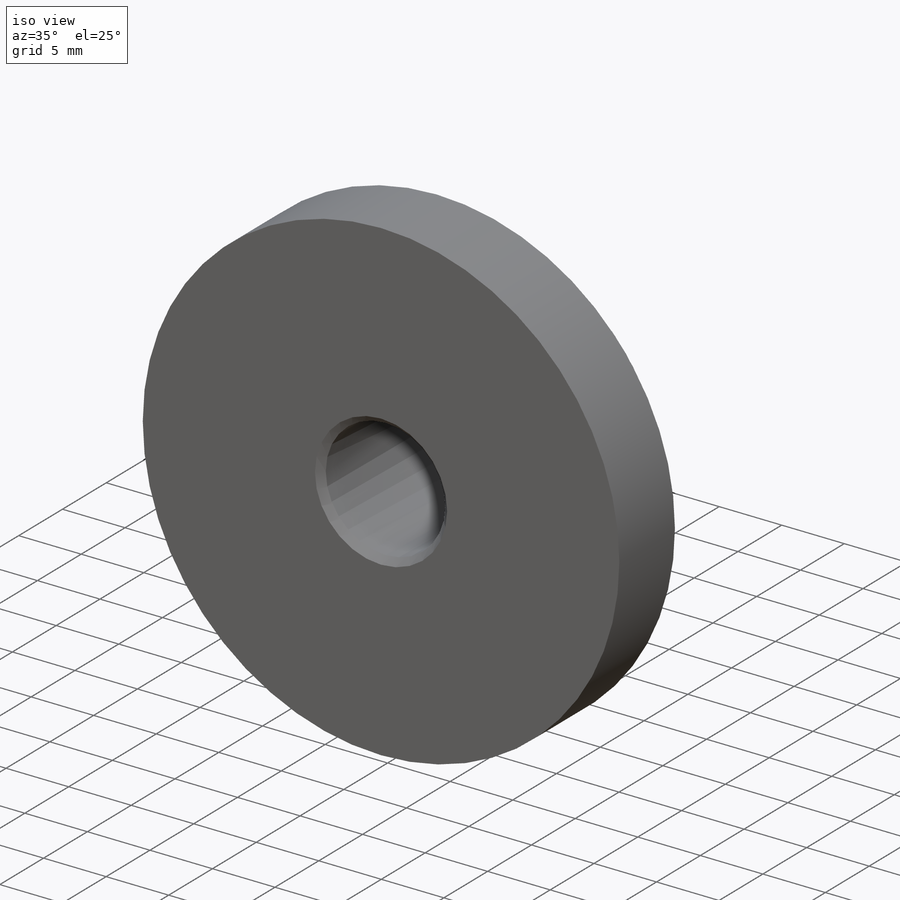
[diagram: iso view]
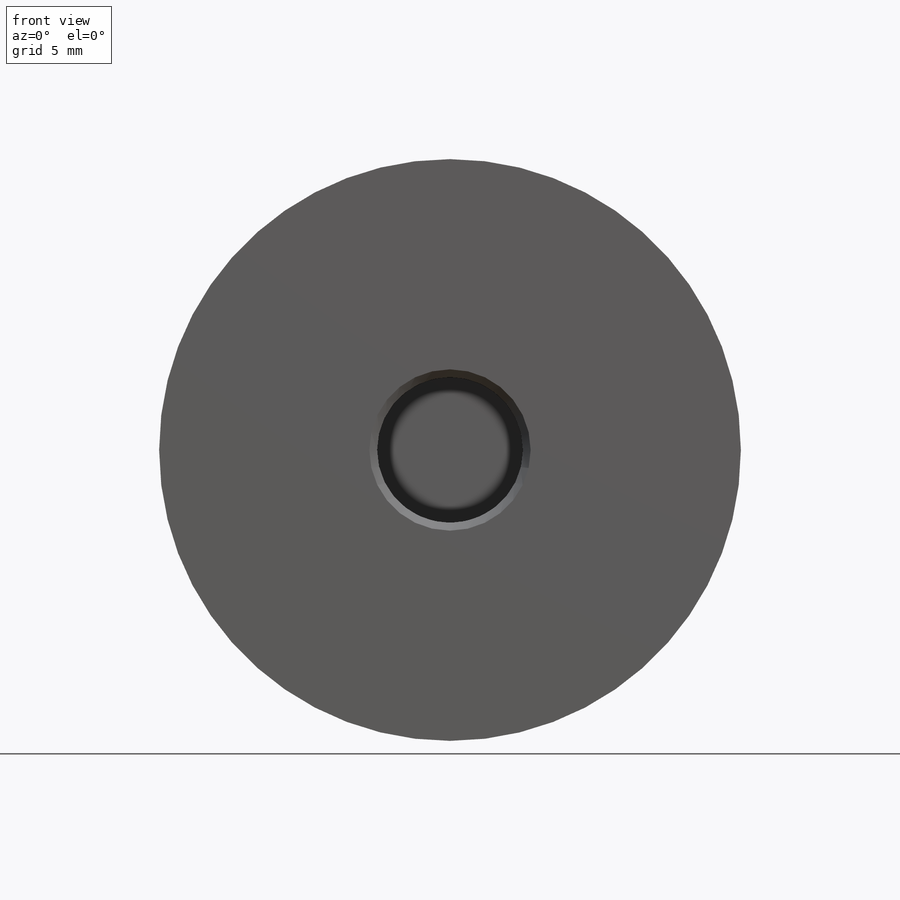
[diagram: front view]
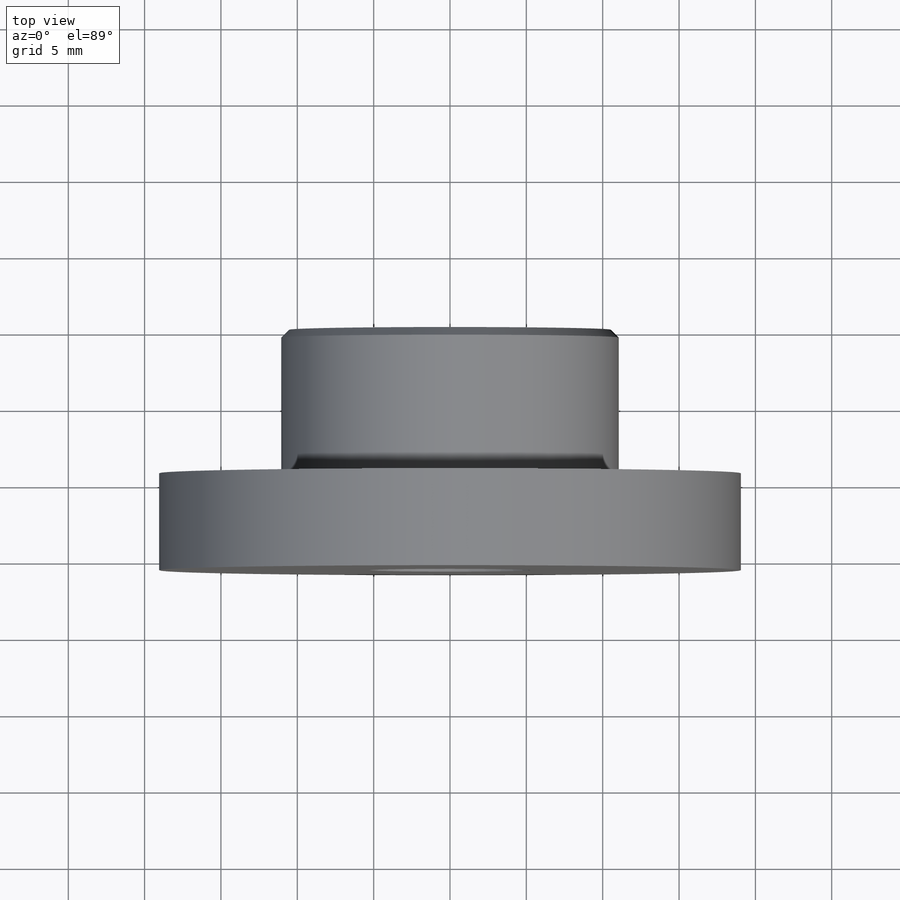
[diagram: top view]
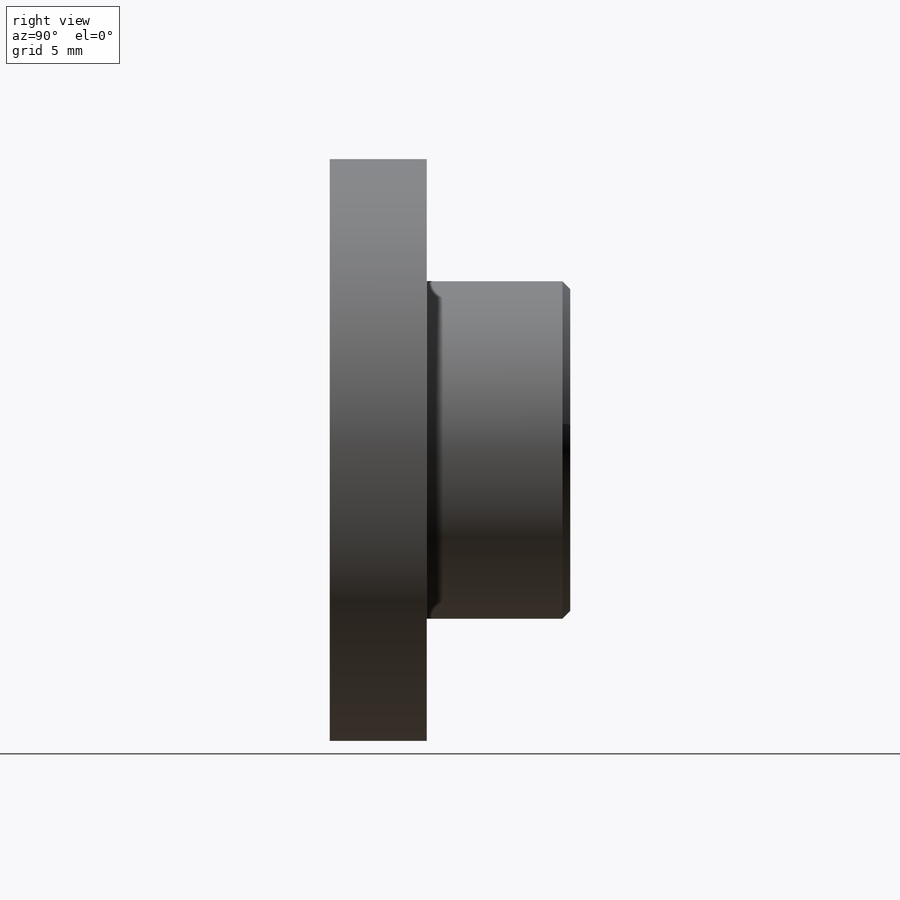
[diagram: right view]
SOLIDWORKS PART (.sldprt)
format: sldprt  version: not decoded by parser v0  size: 230,400 bytes
history: native  units: mm
features: sketch x3, cut_extrude x2, material x1, extrude x1, chamfer x1 (+15 scaffold rows collapsed)
feature tree (23):
  scaffold x15  (default folders/planes/origin — collapsed)
  material  "304 SSTL"
  sketch  "Sketch1"  dims[D1=38.1mm]
  extrude  "Extrude1"  Depth=15.748mm
  sketch  "Sketch2"  dims[D1=22.098mm]
  cut_extrude  "Cut-Extrude1"  Depth=9.398mm
  sketch  "Sketch3"  dims[D1=9.5504mm]
  cut_extrude  "Cut-Extrude2"  Depth=12.192mm
  chamfer  "Chamfer1"  Distance=0.508mm Angle=45deg
decode coverage: 7 of 7 modeling features carry decoded parameters
note: suppression state not decoded; provenance and decode notes live in map.json
